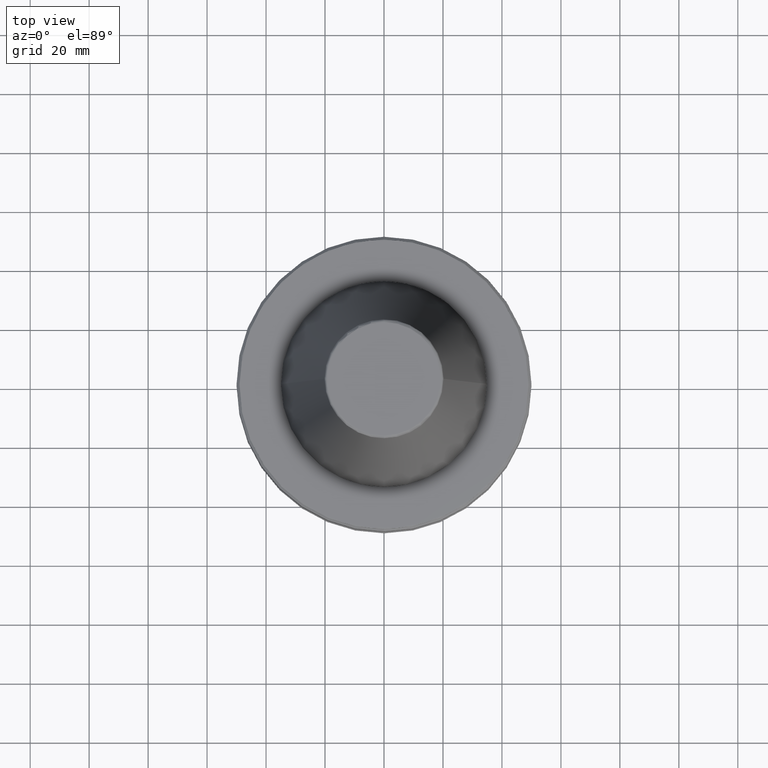
[diagram: clean part render]
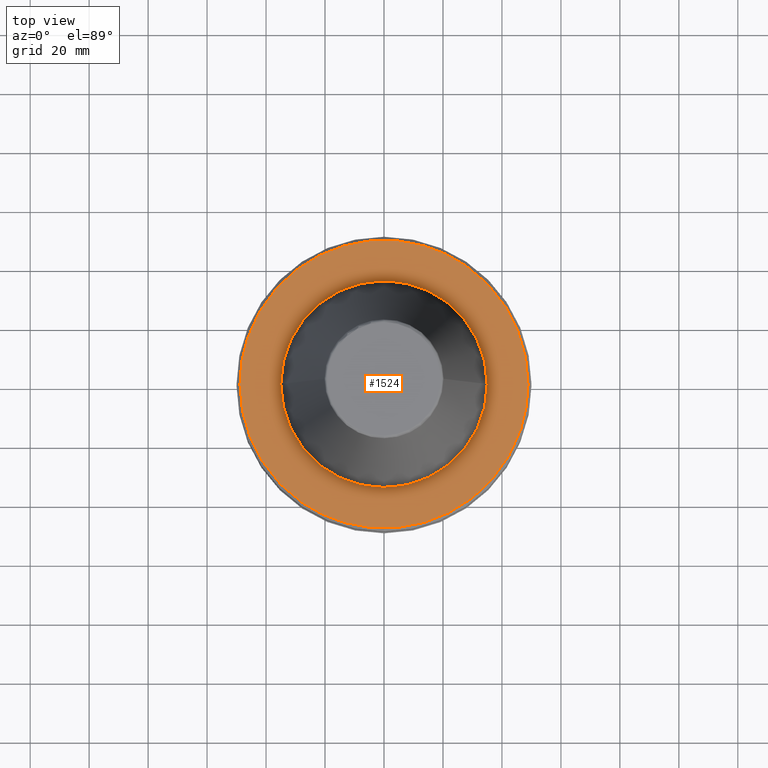
[diagram: same view with one face highlighted and labeled with its STEP entity id]
A machine part, top view. The second image highlights one B-rep face of the part: STEP entity #1524.
In plain terms, the highlighted planar face has unit normal (0, -0, 1).
Its self-contained STEP definition (entity closure, byte-faithful):
#37 = CARTESIAN_POINT ( 'NONE',  ( -27.23553220540944500, 40.53421423840848800, -3.000000000000004000 ) ) ;
#59 = CARTESIAN_POINT ( 'NONE',  ( 13.55000000000033500, 46.91681766717566400, -3.000000000000002700 ) ) ;
#62 = CARTESIAN_POINT ( 'NONE',  ( 15.96079540452978800, 46.22055821575450800, -3.000000000000004400 ) ) ;
#63 = CARTESIAN_POINT ( 'NONE',  ( 18.30369073963733200, 45.34383789579261000, -3.000000000000004000 ) ) ;
#68 = CARTESIAN_POINT ( 'NONE',  ( -26.89643901731271600, 40.76050785033930200, -3.000000000000003600 ) ) ;
#70 = CARTESIAN_POINT ( 'NONE',  ( 20.61423280634889500, 44.27013825121967700, -3.000000000000003600 ) ) ;
#72 = CARTESIAN_POINT ( 'NONE',  ( 20.65264015574149100, 44.25223456410775900, -3.000000000000003100 ) ) ;
#73 = CARTESIAN_POINT ( 'NONE',  ( 20.72651863346675700, 44.21767974870606800, -3.000000000000004000 ) ) ;
#75 = CARTESIAN_POINT ( 'NONE',  ( 20.83726067736095900, 44.16571485338405300, -3.000000000000004000 ) ) ;
#76 = CARTESIAN_POINT ( 'NONE',  ( 21.09512907092508300, 44.04353472542979400, -3.000000000000004000 ) ) ;
#78 = CARTESIAN_POINT ( 'NONE',  ( 21.60874702263039300, 43.79545964737665300, -3.000000000000004400 ) ) ;
#84 = CARTESIAN_POINT ( 'NONE',  ( 22.62750758434936300, 43.28445020269150900, -3.000000000000003600 ) ) ;
#85 = CARTESIAN_POINT ( 'NONE',  ( 24.63112734102079700, 42.20299415900606000, -3.000000000000003600 ) ) ;
#87 = CARTESIAN_POINT ( 'NONE',  ( 26.29039907513943000, 41.17413957130671800, -3.000000000000004000 ) ) ;
#90 = CARTESIAN_POINT ( 'NONE',  ( 27.40451160417230300, 40.42010142101575100, -3.000000000000004000 ) ) ;
#91 = CARTESIAN_POINT ( 'NONE',  ( 27.44013382654868100, 40.39592742588068600, -3.000000000000004000 ) ) ;
#93 = CARTESIAN_POINT ( 'NONE',  ( 27.50941560543479600, 40.34877846401325000, -3.000000000000004000 ) ) ;
#95 = CARTESIAN_POINT ( 'NONE',  ( 27.61323684454539100, 40.27792969539762400, -3.000000000000003100 ) ) ;
#98 = CARTESIAN_POINT ( 'NONE',  ( 27.85477639794029900, 40.11173862125994600, -3.000000000000004000 ) ) ;
#101 = CARTESIAN_POINT ( 'NONE',  ( 28.33501548661065800, 39.77584735017961000, -3.000000000000003600 ) ) ;
#104 = CARTESIAN_POINT ( 'NONE',  ( 29.28413359147368300, 39.09002831679926300, -3.000000000000004000 ) ) ;
#105 = CARTESIAN_POINT ( 'NONE',  ( -33.19187933990084400, 35.82093376859818100, -3.000000000000004400 ) ) ;
#108 = CARTESIAN_POINT ( 'NONE',  ( 31.13692951128890100, 37.66224428515946000, -3.000000000000004000 ) ) ;
#110 = CARTESIAN_POINT ( 'NONE',  ( 32.64714265985481500, 36.34217917538985200, -3.000000000000003100 ) ) ;
#111 = CARTESIAN_POINT ( 'NONE',  ( 33.68009197682785300, 35.36168156059145000, -3.000000000000003600 ) ) ;
#113 = CARTESIAN_POINT ( 'NONE',  ( 33.74244876260501500, 35.30218760878185000, -3.000000000000004000 ) ) ;
#118 = CARTESIAN_POINT ( 'NONE',  ( -48.25166318697979100, 7.521218934263147000, -3.000000000000004000 ) ) ;
#120 = CARTESIAN_POINT ( 'NONE',  ( 33.86507102913279300, 35.18457770622946200, -3.000000000000003600 ) ) ;
#123 = CARTESIAN_POINT ( 'NONE',  ( 34.04850818514732000, 35.00772323194038200, -3.000000000000004000 ) ) ;
#124 = CARTESIAN_POINT ( 'NONE',  ( 34.47305450940760400, 34.59198544870889700, -3.000000000000003600 ) ) ;
#127 = CARTESIAN_POINT ( 'NONE',  ( 35.30825233216713600, 33.74820050935147000, -3.000000000000004000 ) ) ;
#130 = CARTESIAN_POINT ( 'NONE',  ( 36.92306867464214500, 32.01139313905870400, -3.000000000000003100 ) ) ;
#131 = CARTESIAN_POINT ( 'NONE',  ( 38.21191816297380900, 30.43829397895997200, -3.000000000000004000 ) ) ;
#133 = CARTESIAN_POINT ( 'NONE',  ( 40.66257873267921500, 27.17955282087020300, -3.000000000000003100 ) ) ;
#134 = CARTESIAN_POINT ( 'NONE',  ( 42.10613973732795800, 24.88489482718798100, -3.000000000000004000 ) ) ;
#137 = CARTESIAN_POINT ( 'NONE',  ( 43.39600710890824300, 22.39606849091452600, -3.000000000000003600 ) ) ;
#142 = CARTESIAN_POINT ( 'NONE',  ( 43.43385987448086600, 22.32256529546423000, -3.000000000000003600 ) ) ;
#144 = CARTESIAN_POINT ( 'NONE',  ( 43.51020374681444700, 22.17339624215113100, -3.000000000000003600 ) ) ;
#147 = CARTESIAN_POINT ( 'NONE',  ( 43.62412377202790700, 21.94939578420574100, -3.000000000000002700 ) ) ;
#148 = CARTESIAN_POINT ( 'NONE',  ( 43.88576668118424400, 21.42499990316974800, -3.000000000000003600 ) ) ;
#151 = CARTESIAN_POINT ( 'NONE',  ( 44.39237056746301800, 20.36929555777729200, -3.000000000000003600 ) ) ;
#155 = CARTESIAN_POINT ( 'NONE',  ( 45.33885061188532700, 18.23023653371061000, -3.000000000000002700 ) ) ;
#159 = CARTESIAN_POINT ( 'NONE',  ( 46.03572883030116000, 16.34935679888469900, -3.000000000000003100 ) ) ;
#160 = CARTESIAN_POINT ( 'NONE',  ( 46.47533321699812300, 14.99468338358348200, -3.000000000000003600 ) ) ;
#169 = CARTESIAN_POINT ( 'NONE',  ( 46.49963493598600900, 14.91913835505413200, -3.000000000000002700 ) ) ;
#174 = CARTESIAN_POINT ( 'NONE',  ( 46.54920097119888600, 14.76376701351564700, -3.000000000000004000 ) ) ;
#178 = CARTESIAN_POINT ( 'NONE',  ( 46.62295525867276100, 14.53057035968709900, -3.000000000000002700 ) ) ;
#180 = CARTESIAN_POINT ( 'NONE',  ( 46.79088523869382500, 13.98546734344137700, -3.000000000000003600 ) ) ;
#181 = CARTESIAN_POINT ( 'NONE',  ( 47.11009176906399900, 12.89135134836683800, -3.000000000000004000 ) ) ;
#183 = CARTESIAN_POINT ( 'NONE',  ( 47.68189111111654200, 10.68747950788531600, -3.000000000000002700 ) ) ;
#198 = CARTESIAN_POINT ( 'NONE',  ( -33.55771801930628600, 35.47783643604631000, -3.000000000000003100 ) ) ;
#256 = B_SPLINE_CURVE_WITH_KNOTS ( 'NONE', 3,
 ( #1300, #2448, #1486, #1972, #2108, #1375, #1950, #1885, #1960, #2172, #1772, #1385, #1782, #2512, #1292, #2318, #1262, #2270, #1835, #1631, #1276, #2349, #2031, #1926, #2091, #2260, #2524, #1467, #1481, #2397, #1333, #2085, #1048, #1038, #1041, #1710, #1751, #2209, #2034, #1494, #2303, #1853, #1761, #2017, #1731, #2084, #2196, #2272, #2412, #2498, #2071, #2098, #1784, #1397, #1781, #2215, #2246 ),
 .UNSPECIFIED., .F., .F.,
 ( 4, 1, 1, 1, 1, 1, 2, 2, 1, 1, 1, 1, 2, 2, 1, 1, 1, 1, 2, 2, 2, 1, 1, 1, 1, 2, 2, 1, 1, 1, 1, 1, 2, 2, 1, 1, 1, 1, 1, 2, 2, 4 ),
 ( 0.5000000000000000000, 0.5312500000000008900, 0.5468750000000013300, 0.5546875000000015500, 0.5585937500000016700, 0.5605468750000017800, 0.5615234375000017800, 0.5625000000000017800, 0.5937500000000023300, 0.6093750000000025500, 0.6171875000000026600, 0.6210937500000026600, 0.6230468750000026600, 0.6250000000000026600, 0.6562500000000028900, 0.6718750000000028900, 0.6796875000000028900, 0.6835937500000028900, 0.6855468750000028900, 0.6875000000000028900, 0.7500000000000043300, 0.7812500000000051100, 0.7968750000000055500, 0.8046875000000057700, 0.8085937500000058800, 0.8105468750000060000, 0.8125000000000060000, 0.8437500000000079900, 0.8593750000000088800, 0.8671875000000093300, 0.8710937500000096600, 0.8730468750000098800, 0.8740234375000098800, 0.8750000000000099900, 0.9062500000000093300, 0.9218750000000088800, 0.9296875000000086600, 0.9335937500000086600, 0.9355468750000086600, 0.9365234375000085500, 0.9375000000000084400, 1.000000000000000000 ),
 .UNSPECIFIED. ) ;
#279 = CARTESIAN_POINT ( 'NONE',  ( -48.21322247611666300, 7.764469041444130900, -3.000000000000004000 ) ) ;
#282 = CIRCLE ( 'NONE', #2039, 48.83431457505076200 ) ;
#291 = B_SPLINE_CURVE_WITH_KNOTS ( 'NONE', 3,
 ( #976, #2249, #1226, #360, #1811, #1523, #401, #1461, #1521, #1034, #2510, #1730, #723, #715, #68, #2395, #37, #2316, #2461, #1159, #1872, #1257, #105, #1546, #2061, #198, #1507, #363, #2353, #2296, #1078, #1746, #541, #1733, #558, #1527, #2335, #2378, #709, #1928, #880, #1132, #2432, #597, #2346, #700, #2459, #349, #2474, #2332, #279, #659, #2033, #118, #2078, #851, #1704 ),
 .UNSPECIFIED., .F., .F.,
 ( 4, 1, 1, 1, 1, 1, 2, 2, 1, 1, 1, 1, 2, 2, 1, 1, 1, 1, 2, 2, 2, 1, 1, 1, 1, 2, 2, 1, 1, 1, 1, 1, 2, 2, 1, 1, 1, 1, 1, 2, 2, 4 ),
 ( 0.0000000000000000000, 0.03125000000000056900, 0.04687500000000092300, 0.05468750000000110300, 0.05859375000000122800, 0.06054687500000129100, 0.06152343750000131800, 0.06250000000000134600, 0.09375000000000137400, 0.1093750000000013700, 0.1171875000000013600, 0.1210937500000013500, 0.1230468750000013000, 0.1250000000000012800, 0.1562500000000011700, 0.1718750000000011700, 0.1796875000000012200, 0.1835937500000012800, 0.1855468750000013900, 0.1875000000000014700, 0.2500000000000013300, 0.2812500000000012800, 0.2968750000000012200, 0.3046875000000011700, 0.3085937500000011100, 0.3105468750000011100, 0.3125000000000010500, 0.3437500000000003900, 0.3593750000000000000, 0.3671874999999998300, 0.3710937499999998300, 0.3730468749999997800, 0.3740234374999998300, 0.3749999999999998300, 0.4062499999999998900, 0.4218749999999999400, 0.4296875000000000000, 0.4335937500000000000, 0.4355468750000000600, 0.4365234375000000600, 0.4375000000000000600, 0.5000000000000000000 ),
 .UNSPECIFIED. ) ;
#313 = VERTEX_POINT ( 'NONE', #1229 ) ;
#320 = CARTESIAN_POINT ( 'NONE',  ( 48.33913528503863000, 6.939862045039517600, -3.000000000000003600 ) ) ;
#326 = CARTESIAN_POINT ( 'NONE',  ( 48.29905917494857400, 7.211225430777359300, -3.000000000000004400 ) ) ;
#328 = CARTESIAN_POINT ( 'NONE',  ( 48.26391469426968700, 7.442204003466045500, -3.000000000000003600 ) ) ;
#330 = CARTESIAN_POINT ( 'NONE',  ( 48.05780988655400400, 8.771635329759890400, -3.000000000000003600 ) ) ;
#349 = CARTESIAN_POINT ( 'NONE',  ( -47.86329870647789200, 9.728944735816007500, -3.000000000000003600 ) ) ;
#353 = EDGE_CURVE ( 'NONE', #505, #1688, #282, .T. ) ;
#360 = CARTESIAN_POINT ( 'NONE',  ( -18.57278506928501100, 45.17233773588960600, -3.000000000000004000 ) ) ;
#363 = CARTESIAN_POINT ( 'NONE',  ( -37.39493595253374300, 31.52446931882317600, -3.000000000000004900 ) ) ;
#387 = VERTEX_POINT ( 'NONE', #1343 ) ;
#401 = CARTESIAN_POINT ( 'NONE',  ( -20.32955738506327100, 44.40168899857594900, -3.000000000000004000 ) ) ;
#429 = CARTESIAN_POINT ( 'NONE',  ( 48.26963561402765600, 7.404996304168480300, -3.000000000000004400 ) ) ;
#434 = CARTESIAN_POINT ( 'NONE',  ( 48.28146135143128200, 7.327492198324145000, -3.000000000000004400 ) ) ;
#444 = ORIENTED_EDGE ( 'NONE', *, *, #2503, .F. ) ;
#462 = DIRECTION ( 'NONE',  ( -1.000000000000000000, 0.0000000000000000000, 0.0000000000000000000 ) ) ;
#463 = DIRECTION ( 'NONE',  ( -0.0000000000000000000, -0.0000000000000000000, -1.000000000000000000 ) ) ;
#475 = CARTESIAN_POINT ( 'NONE',  ( 0.0000000000000000000, 0.0000000000000000000, -3.000000000000002700 ) ) ;
#505 = VERTEX_POINT ( 'NONE', #2372 ) ;
#529 = DIRECTION ( 'NONE',  ( -0.0000000000000000000, -0.0000000000000000000, -1.000000000000000000 ) ) ;
#535 = EDGE_LOOP ( 'NONE', ( #1377, #2224, #444, #2478, #1028, #1323 ) ) ;
#538 = EDGE_CURVE ( 'NONE', #2011, #1150, #1978, .T. ) ;
#541 = CARTESIAN_POINT ( 'NONE',  ( -43.08053204038057500, 22.99802936414789300, -3.000000000000003600 ) ) ;
#550 = B_SPLINE_CURVE_WITH_KNOTS ( 'NONE', 3,
 ( #2455, #1274, #2066, #879, #1137, #878, #1427, #1991, #1298, #2229, #2040, #1304, #2505, #1254, #1857, #1176, #1668, #1690, #1278, #1954, #2074, #1501, #1313, #1256, #1115, #671, #564, #641, #1119, #1112, #1125, #1093, #819, #810, #1742, #1269, #1597, #1993, #1714, #766, #1979, #999, #1657, #2133, #1011, #1020, #1024, #1675, #1017, #943, #1103, #1605, #1825, #2259, #1431, #1260, #1185 ),
 .UNSPECIFIED., .F., .F.,
 ( 4, 1, 1, 1, 1, 1, 2, 2, 1, 1, 1, 1, 2, 2, 1, 1, 1, 1, 2, 2, 2, 1, 1, 1, 1, 2, 2, 1, 1, 1, 1, 1, 2, 2, 1, 1, 1, 1, 1, 2, 2, 4 ),
 ( 0.0000000000000000000, 0.06250000000000613400, 0.09375000000000925600, 0.1093750000000107400, 0.1171875000000114100, 0.1210937500000116600, 0.1230468750000117800, 0.1250000000000119100, 0.1875000000000151500, 0.2187500000000166300, 0.2343750000000175400, 0.2421875000000179900, 0.2460937500000180400, 0.2500000000000181000, 0.3125000000000168200, 0.3437500000000161500, 0.3593750000000157700, 0.3671875000000156000, 0.3710937500000155400, 0.3750000000000154900, 0.5000000000000138800, 0.5625000000000129900, 0.5937500000000125500, 0.6093750000000124300, 0.6171875000000123200, 0.6210937500000121000, 0.6250000000000118800, 0.6875000000000104400, 0.7187500000000096600, 0.7343750000000093300, 0.7421875000000091000, 0.7460937500000091000, 0.7480468750000088800, 0.7500000000000087700, 0.8125000000000066600, 0.8437500000000056600, 0.8593750000000051100, 0.8671875000000048800, 0.8710937500000046600, 0.8730468750000046600, 0.8750000000000045500, 1.000000000000000000 ),
 .UNSPECIFIED. ) ;
#558 = CARTESIAN_POINT ( 'NONE',  ( -43.27851221864883500, 22.62228278937309900, -3.000000000000004000 ) ) ;
#564 = CARTESIAN_POINT ( 'NONE',  ( 35.59092170814943000, -33.54804444530891800, -3.000000000000003600 ) ) ;
#580 = EDGE_CURVE ( 'NONE', #1554, #313, #256, .T. ) ;
#597 = CARTESIAN_POINT ( 'NONE',  ( -46.42354857673245800, 15.15407649973855300, -3.000000000000004000 ) ) ;
#616 = CIRCLE ( 'NONE', #644, 35.00000000000000000 ) ;
#641 = CARTESIAN_POINT ( 'NONE',  ( 37.39493595240568900, -31.52446931902470300, -3.000000000000004000 ) ) ;
#644 = AXIS2_PLACEMENT_3D ( 'NONE', #2002, #529, #1513 ) ;
#659 = CARTESIAN_POINT ( 'NONE',  ( -48.23241948626135000, 7.643656684620761900, -3.000000000000003600 ) ) ;
#671 = CARTESIAN_POINT ( 'NONE',  ( 33.55771801930338000, -35.47783643604895300, -3.000000000000004000 ) ) ;
#685 = DIRECTION ( 'NONE',  ( 1.000000000000000000, 0.0000000000000000000, -0.0000000000000000000 ) ) ;
#692 = CARTESIAN_POINT ( 'NONE',  ( 48.76223388992388400, 3.130378040029057300, -3.000000000000002700 ) ) ;
#700 = CARTESIAN_POINT ( 'NONE',  ( -46.85218838754063600, 13.83355689064239500, -3.000000000000004400 ) ) ;
#709 = CARTESIAN_POINT ( 'NONE',  ( -45.68057851783069600, 17.28801724585975900, -3.000000000000003600 ) ) ;
#715 = CARTESIAN_POINT ( 'NONE',  ( -26.41933500148311300, 41.07309309406470300, -3.000000000000004000 ) ) ;
#723 = CARTESIAN_POINT ( 'NONE',  ( -25.45674972572673100, 41.68334894747632500, -3.000000000000003600 ) ) ;
#733 = EDGE_CURVE ( 'NONE', #387, #1097, #550, .T. ) ;
#760 = ORIENTED_EDGE ( 'NONE', *, *, #538, .T. ) ;
#766 = CARTESIAN_POINT ( 'NONE',  ( 46.07611793284339500, -16.18587320140845500, -3.000000000000004000 ) ) ;
#810 = CARTESIAN_POINT ( 'NONE',  ( 43.19954416767025400, -22.77272333030448000, -3.000000000000004000 ) ) ;
#819 = CARTESIAN_POINT ( 'NONE',  ( 43.08053204040695800, -22.99802936410629100, -3.000000000000003600 ) ) ;
#851 = CARTESIAN_POINT ( 'NONE',  ( -48.83426233409910800, 2.508310820191460300, -3.000000000000004000 ) ) ;
#878 = CARTESIAN_POINT ( 'NONE',  ( 20.07996905139597700, -44.51548638624510100, -3.000000000000003600 ) ) ;
#879 = CARTESIAN_POINT ( 'NONE',  ( 18.57278506911646300, -45.17233773593829200, -3.000000000000003600 ) ) ;
#880 = CARTESIAN_POINT ( 'NONE',  ( -46.26556893569932100, 15.63129151596917600, -3.000000000000004000 ) ) ;
#940 = CARTESIAN_POINT ( 'NONE',  ( 48.83431457505076900, 1.254323894214281600, -3.000000000000004000 ) ) ;
#943 = CARTESIAN_POINT ( 'NONE',  ( 48.16739023597520500, -8.046113315427994900, -3.000000000000004000 ) ) ;
#960 = ORIENTED_EDGE ( 'NONE', *, *, #1652, .T. ) ;
#976 = CARTESIAN_POINT ( 'NONE',  ( -13.55000000000003400, 46.91681766717574900, -3.000000000000002700 ) ) ;
#994 = CARTESIAN_POINT ( 'NONE',  ( 48.41534559275088200, 6.396838227715814000, -3.000000000000003100 ) ) ;
#999 = CARTESIAN_POINT ( 'NONE',  ( 46.35821476094903900, -15.35312325745613500, -3.000000000000003600 ) ) ;
#1004 = EDGE_CURVE ( 'NONE', #1097, #1688, #1645, .T. ) ;
#1009 = FACE_BOUND ( 'NONE', #2468, .T. ) ;
#1011 = CARTESIAN_POINT ( 'NONE',  ( 46.43688931498943600, -15.11314546664304500, -3.000000000000003100 ) ) ;
#1017 = CARTESIAN_POINT ( 'NONE',  ( 48.07156888578058600, -8.608396974643161700, -3.000000000000004000 ) ) ;
#1020 = CARTESIAN_POINT ( 'NONE',  ( 46.85218838945433400, -13.83355688478801300, -3.000000000000003100 ) ) ;
#1024 = CARTESIAN_POINT ( 'NONE',  ( 47.38024844980027700, -11.95396197534537200, -3.000000000000004400 ) ) ;
#1028 = ORIENTED_EDGE ( 'NONE', *, *, #1004, .T. ) ;
#1034 = CARTESIAN_POINT ( 'NONE',  ( -20.54171500325262300, 44.30383512485258300, -3.000000000000004000 ) ) ;
#1038 = CARTESIAN_POINT ( 'NONE',  ( -33.86507102918198300, -35.18457770616905800, -3.000000000000003600 ) ) ;
#1041 = CARTESIAN_POINT ( 'NONE',  ( -33.74244876263042400, -35.30218760875071400, -3.000000000000004000 ) ) ;
#1048 = CARTESIAN_POINT ( 'NONE',  ( -34.04850818523095800, -35.00772323183752400, -3.000000000000003100 ) ) ;
#1068 = CARTESIAN_POINT ( 'NONE',  ( 48.83431457505076200, -5.872557691932300300E-015, -3.000000000000003600 ) ) ;
#1078 = CARTESIAN_POINT ( 'NONE',  ( -42.22000466109877700, 24.55778749774379600, -3.000000000000003600 ) ) ;
#1085 = DIRECTION ( 'NONE',  ( 0.0000000000000000000, -0.0000000000000000000, 1.000000000000000000 ) ) ;
#1093 = CARTESIAN_POINT ( 'NONE',  ( 42.79891672130962400, -23.52125999967609700, -3.000000000000004400 ) ) ;
#1097 = VERTEX_POINT ( 'NONE', #1861 ) ;
#1103 = CARTESIAN_POINT ( 'NONE',  ( 48.21322247652229700, -7.764469040202752300, -3.000000000000004000 ) ) ;
#1112 = CARTESIAN_POINT ( 'NONE',  ( 40.99945485320051800, -26.59110740066587300, -3.000000000000004000 ) ) ;
#1115 = CARTESIAN_POINT ( 'NONE',  ( 33.49760391570076500, -35.53459774463583900, -3.000000000000003100 ) ) ;
#1119 = CARTESIAN_POINT ( 'NONE',  ( 39.84573955310968100, -28.26583572988388600, -3.000000000000003600 ) ) ;
#1125 = CARTESIAN_POINT ( 'NONE',  ( 42.22000466118275600, -24.55778749761157100, -3.000000000000003600 ) ) ;
#1132 = CARTESIAN_POINT ( 'NONE',  ( -46.35821476095267700, 15.35312325745407900, -3.000000000000003600 ) ) ;
#1137 = CARTESIAN_POINT ( 'NONE',  ( 19.57941324405338800, -44.73937645067123700, -3.000000000000004400 ) ) ;
#1150 = VERTEX_POINT ( 'NONE', #1436 ) ;
#1159 = CARTESIAN_POINT ( 'NONE',  ( -30.09453745907142900, 38.50028199906233800, -3.000000000000003600 ) ) ;
#1172 = CARTESIAN_POINT ( 'NONE',  ( 0.0000000000000000000, 3.761784076614683100E-016, -3.000000000000003600 ) ) ;
#1176 = CARTESIAN_POINT ( 'NONE',  ( 27.10001460506892100, -40.62494474939526200, -3.000000000000004000 ) ) ;
#1185 = CARTESIAN_POINT ( 'NONE',  ( 48.83431457505076200, -5.872557691932300300E-015, -3.000000000000003600 ) ) ;
#1226 = CARTESIAN_POINT ( 'NONE',  ( -16.53746247846028400, 45.97898493206698600, -3.000000000000004000 ) ) ;
#1229 = CARTESIAN_POINT ( 'NONE',  ( -13.55000000000033300, -46.91681766717566400, -3.000000000000002700 ) ) ;
#1254 = CARTESIAN_POINT ( 'NONE',  ( 26.41933500142889800, -41.07309309410793900, -3.000000000000004000 ) ) ;
#1256 = CARTESIAN_POINT ( 'NONE',  ( 33.37547508358979800, -35.64933370969678400, -3.000000000000004000 ) ) ;
#1257 = CARTESIAN_POINT ( 'NONE',  ( -32.76067180271516600, 36.21780668512191400, -3.000000000000003600 ) ) ;
#1260 = CARTESIAN_POINT ( 'NONE',  ( 48.83431457505076200, -2.509324950172765700, -3.000000000000002700 ) ) ;
#1261 = CARTESIAN_POINT ( 'NONE',  ( 48.55199855830390000, 5.309602409676333700, -3.000000000000003600 ) ) ;
#1262 = CARTESIAN_POINT ( 'NONE',  ( -46.49963493599049300, -14.91913835503140700, -3.000000000000004000 ) ) ;
#1269 = CARTESIAN_POINT ( 'NONE',  ( 43.31836805486218400, -22.54586674811006100, -3.000000000000004000 ) ) ;
#1274 = CARTESIAN_POINT ( 'NONE',  ( 14.75507241575457200, -46.56878188714247100, -3.000000000000004000 ) ) ;
#1276 = CARTESIAN_POINT ( 'NONE',  ( -44.39237056751483100, -20.36929555771631000, -3.000000000000003600 ) ) ;
#1278 = CARTESIAN_POINT ( 'NONE',  ( 28.48087312497931100, -39.69168253820092200, -3.000000000000003100 ) ) ;
#1292 = CARTESIAN_POINT ( 'NONE',  ( -46.62295525868694300, -14.53057035961355800, -3.000000000000003100 ) ) ;
#1298 = CARTESIAN_POINT ( 'NONE',  ( 20.50755565452770300, -44.31965538733499000, -3.000000000000003600 ) ) ;
#1300 = CARTESIAN_POINT ( 'NONE',  ( -48.83431457505076200, 8.049116928532384900E-013, -3.000000000000003600 ) ) ;
#1304 = CARTESIAN_POINT ( 'NONE',  ( 23.49807019770247500, -42.84420211824117800, -3.000000000000003600 ) ) ;
#1313 = CARTESIAN_POINT ( 'NONE',  ( 33.19187933991025800, -35.82093376858835400, -3.000000000000003600 ) ) ;
#1323 = ORIENTED_EDGE ( 'NONE', *, *, #353, .F. ) ;
#1333 = CARTESIAN_POINT ( 'NONE',  ( -35.30825233243377400, -33.74820050902319900, -3.000000000000003600 ) ) ;
#1343 = CARTESIAN_POINT ( 'NONE',  ( 13.54999999999996900, -46.91681766717575600, -3.000000000000002700 ) ) ;
#1375 = CARTESIAN_POINT ( 'NONE',  ( -48.33914599851516400, -6.939792940224271500, -3.000000000000003600 ) ) ;
#1377 = ORIENTED_EDGE ( 'NONE', *, *, #1551, .T. ) ;
#1385 = CARTESIAN_POINT ( 'NONE',  ( -47.68189111117587900, -10.68747950757466100, -3.000000000000002700 ) ) ;
#1397 = CARTESIAN_POINT ( 'NONE',  ( -20.61423280634948400, -44.27013825121951400, -3.000000000000004400 ) ) ;
#1416 = DIRECTION ( 'NONE',  ( -0.0000000000000000000, -0.0000000000000000000, -1.000000000000000000 ) ) ;
#1427 = CARTESIAN_POINT ( 'NONE',  ( 20.32955738503580500, -44.40168899858391400, -3.000000000000003600 ) ) ;
#1431 = CARTESIAN_POINT ( 'NONE',  ( 48.64209941471247600, -5.003488217250251500, -3.000000000000003100 ) ) ;
#1436 = CARTESIAN_POINT ( 'NONE',  ( -35.00000000000000000, 2.143131898507869000E-015, -3.000000000000003100 ) ) ;
#1461 = CARTESIAN_POINT ( 'NONE',  ( -20.43637604874784900, 44.35252175627126500, -3.000000000000004000 ) ) ;
#1467 = CARTESIAN_POINT ( 'NONE',  ( -40.66257873227418400, -27.17955282136886600, -3.000000000000004400 ) ) ;
#1475 = CARTESIAN_POINT ( 'NONE',  ( 0.0000000000000000000, -2.143131898507867900E-015, -3.000000000000003100 ) ) ;
#1481 = CARTESIAN_POINT ( 'NONE',  ( -38.21191816317709600, -30.43829397870957000, -3.000000000000003100 ) ) ;
#1486 = CARTESIAN_POINT ( 'NONE',  ( -48.76227960075661400, -3.130083192820077200, -3.000000000000003600 ) ) ;
#1494 = CARTESIAN_POINT ( 'NONE',  ( -28.33501548676044000, -39.77584735008070300, -3.000000000000002700 ) ) ;
#1501 = CARTESIAN_POINT ( 'NONE',  ( 32.76067180273337700, -36.21780668510300000, -3.000000000000003600 ) ) ;
#1507 = CARTESIAN_POINT ( 'NONE',  ( -35.59092170807915800, 33.54804444537116100, -3.000000000000003100 ) ) ;
#1513 = DIRECTION ( 'NONE',  ( 1.000000000000000000, 0.0000000000000000000, 0.0000000000000000000 ) ) ;
#1521 = CARTESIAN_POINT ( 'NONE',  ( -20.50755565453594900, 44.31965538733256700, -3.000000000000004900 ) ) ;
#1523 = CARTESIAN_POINT ( 'NONE',  ( -20.07996905144884900, 44.51548638622978900, -3.000000000000003600 ) ) ;
#1524 = ADVANCED_FACE ( 'NONE', ( #2560, #1009 ), #1715, .T. ) ;
#1527 = CARTESIAN_POINT ( 'NONE',  ( -43.31836805486079100, 22.54586674811126900, -3.000000000000002700 ) ) ;
#1546 = CARTESIAN_POINT ( 'NONE',  ( -33.37547508358455400, 35.64933370970226200, -3.000000000000002700 ) ) ;
#1551 = EDGE_CURVE ( 'NONE', #505, #1554, #291, .T. ) ;
#1554 = VERTEX_POINT ( 'NONE', #1659 ) ;
#1564 = CIRCLE ( 'NONE', #2392, 48.83431457505076200 ) ;
#1588 = DIRECTION ( 'NONE',  ( -1.000000000000000000, 0.0000000000000000000, 0.0000000000000000000 ) ) ;
#1597 = CARTESIAN_POINT ( 'NONE',  ( 43.97375484283028200, -21.28141903386862300, -3.000000000000003600 ) ) ;
#1598 = CARTESIAN_POINT ( 'NONE',  ( 35.00000000000000000, -2.143131898507867900E-015, -3.000000000000003100 ) ) ;
#1605 = CARTESIAN_POINT ( 'NONE',  ( 48.23241948649599900, -7.643656683902436900, -3.000000000000004000 ) ) ;
#1631 = CARTESIAN_POINT ( 'NONE',  ( -45.33885061195423600, -18.23023653362964300, -3.000000000000003600 ) ) ;
#1645 = B_SPLINE_CURVE_WITH_KNOTS ( 'NONE', 3,
 ( #1068, #940, #692, #1261, #994, #320, #326, #434, #429, #328, #330, #183, #181, #180, #178, #174, #169, #160, #159, #155, #151, #148, #147, #144, #142, #137, #134, #133, #131, #130, #127, #124, #123, #120, #113, #111, #110, #108, #104, #101, #98, #95, #93, #91, #90, #87, #85, #84, #78, #76, #75, #73, #72, #70, #63, #62, #59 ),
 .UNSPECIFIED., .F., .F.,
 ( 4, 1, 1, 1, 1, 1, 2, 2, 1, 1, 1, 1, 2, 2, 1, 1, 1, 1, 2, 2, 2, 1, 1, 1, 1, 2, 2, 1, 1, 1, 1, 1, 2, 2, 1, 1, 1, 1, 1, 2, 2, 4 ),
 ( 0.0000000000000000000, 0.06250000000000176200, 0.09375000000000267800, 0.1093750000000031200, 0.1171875000000033700, 0.1210937500000034700, 0.1230468750000035100, 0.1250000000000035500, 0.1875000000000058600, 0.2187500000000069400, 0.2343750000000074700, 0.2421875000000076900, 0.2460937500000078300, 0.2500000000000079900, 0.3125000000000115500, 0.3437500000000132700, 0.3593750000000141600, 0.3671875000000146000, 0.3710937500000147700, 0.3750000000000149300, 0.5000000000000167600, 0.5625000000000176500, 0.5937500000000181000, 0.6093750000000183200, 0.6171875000000184300, 0.6210937500000184300, 0.6250000000000184300, 0.6875000000000193200, 0.7187500000000197600, 0.7343750000000201000, 0.7421875000000202100, 0.7460937500000201000, 0.7480468750000201000, 0.7500000000000201000, 0.8125000000000132100, 0.8437500000000097700, 0.8593750000000081000, 0.8671875000000073300, 0.8710937500000067700, 0.8730468750000066600, 0.8750000000000064400, 1.000000000000000000 ),
 .UNSPECIFIED. ) ;
#1652 = EDGE_CURVE ( 'NONE', #1150, #2011, #616, .T. ) ;
#1657 = CARTESIAN_POINT ( 'NONE',  ( 46.39747446973758100, -15.23372027184852200, -3.000000000000003600 ) ) ;
#1659 = CARTESIAN_POINT ( 'NONE',  ( -48.83431457505076200, 8.049116928532384900E-013, -3.000000000000003600 ) ) ;
#1668 = CARTESIAN_POINT ( 'NONE',  ( 27.23553220540012600, -40.53421423841582100, -3.000000000000002700 ) ) ;
#1675 = CARTESIAN_POINT ( 'NONE',  ( 47.86329870898952500, -9.728944728132237400, -3.000000000000003600 ) ) ;
#1688 = VERTEX_POINT ( 'NONE', #2406 ) ;
#1690 = CARTESIAN_POINT ( 'NONE',  ( 27.30136796178399500, -40.48990534466803100, -3.000000000000004000 ) ) ;
#1704 = CARTESIAN_POINT ( 'NONE',  ( -48.83431457505076200, 8.049116928532384900E-013, -3.000000000000003600 ) ) ;
#1710 = CARTESIAN_POINT ( 'NONE',  ( -33.68009197681610800, -35.36168156059912300, -3.000000000000004000 ) ) ;
#1714 = CARTESIAN_POINT ( 'NONE',  ( 45.68057851780706400, -17.28801724587585300, -3.000000000000003600 ) ) ;
#1715 = PLANE ( 'NONE',  #2057 ) ;
#1717 = AXIS2_PLACEMENT_3D ( 'NONE', #1475, #2124, #1860 ) ;
#1730 = CARTESIAN_POINT ( 'NONE',  ( -23.49807019782533900, 42.84420211814300200, -3.000000000000003600 ) ) ;
#1731 = CARTESIAN_POINT ( 'NONE',  ( -27.40451160417343600, -40.42010142101506900, -3.000000000000003600 ) ) ;
#1733 = CARTESIAN_POINT ( 'NONE',  ( -43.19954416765470000, 22.77272333032902900, -3.000000000000003600 ) ) ;
#1742 = CARTESIAN_POINT ( 'NONE',  ( 43.27851221865692100, -22.62228278936032700, -3.000000000000003600 ) ) ;
#1746 = CARTESIAN_POINT ( 'NONE',  ( -42.79891672126051100, 23.52125999975341500, -3.000000000000003600 ) ) ;
#1751 = CARTESIAN_POINT ( 'NONE',  ( -32.64714266005061900, -36.34217917526048300, -3.000000000000003100 ) ) ;
#1761 = CARTESIAN_POINT ( 'NONE',  ( -27.50941560545886600, -40.34877846399733400, -3.000000000000003600 ) ) ;
#1772 = CARTESIAN_POINT ( 'NONE',  ( -48.05780988658794000, -8.771635329582025500, -3.000000000000003600 ) ) ;
#1781 = CARTESIAN_POINT ( 'NONE',  ( -18.30369073959559100, -45.34383789580465400, -3.000000000000004400 ) ) ;
#1782 = CARTESIAN_POINT ( 'NONE',  ( -47.11009176910860700, -12.89135134813358300, -3.000000000000004000 ) ) ;
#1784 = CARTESIAN_POINT ( 'NONE',  ( -20.65264015573939500, -44.25223456410896000, -3.000000000000004000 ) ) ;
#1811 = CARTESIAN_POINT ( 'NONE',  ( -19.57941324415183000, 44.73937645064275900, -3.000000000000004000 ) ) ;
#1825 = CARTESIAN_POINT ( 'NONE',  ( 48.24511852007130800, -7.563091187053768000, -3.000000000000003600 ) ) ;
#1835 = CARTESIAN_POINT ( 'NONE',  ( -46.03572883034065200, -16.34935679883803400, -3.000000000000003100 ) ) ;
#1853 = CARTESIAN_POINT ( 'NONE',  ( -27.61323684458695700, -40.27792969537018300, -3.000000000000004000 ) ) ;
#1857 = CARTESIAN_POINT ( 'NONE',  ( 26.89643901728333500, -40.76050785036270000, -3.000000000000004000 ) ) ;
#1860 = DIRECTION ( 'NONE',  ( 1.000000000000000000, 0.0000000000000000000, 0.0000000000000000000 ) ) ;
#1861 = CARTESIAN_POINT ( 'NONE',  ( 48.83431457505076200, -5.872557691932300300E-015, -3.000000000000003600 ) ) ;
#1869 = CARTESIAN_POINT ( 'NONE',  ( 0.0000000000000000000, 0.0000000000000000000, -3.000000000000002700 ) ) ;
#1872 = CARTESIAN_POINT ( 'NONE',  ( -31.88698685398246000, 36.99744363456910900, -3.000000000000004400 ) ) ;
#1885 = CARTESIAN_POINT ( 'NONE',  ( -48.28146455272013800, -7.327471549146623400, -3.000000000000004000 ) ) ;
#1926 = CARTESIAN_POINT ( 'NONE',  ( -43.51020374682437400, -22.17339624213915500, -3.000000000000003600 ) ) ;
#1928 = CARTESIAN_POINT ( 'NONE',  ( -46.07611793285708000, 16.18587320139933900, -3.000000000000003600 ) ) ;
#1950 = CARTESIAN_POINT ( 'NONE',  ( -48.29906471024481400, -7.211189726622409400, -3.000000000000003600 ) ) ;
#1954 = CARTESIAN_POINT ( 'NONE',  ( 30.09453745911390100, -38.50028199901819200, -3.000000000000004000 ) ) ;
#1960 = CARTESIAN_POINT ( 'NONE',  ( -48.26963723380334400, -7.404985856177847700, -3.000000000000003600 ) ) ;
#1972 = CARTESIAN_POINT ( 'NONE',  ( -48.55203284142848500, -5.309381274269387800, -3.000000000000003600 ) ) ;
#1978 = CIRCLE ( 'NONE', #1717, 35.00000000000000000 ) ;
#1979 = CARTESIAN_POINT ( 'NONE',  ( 46.26556893569205900, -15.63129151597373800, -3.000000000000004000 ) ) ;
#1991 = CARTESIAN_POINT ( 'NONE',  ( 20.43637604873184400, -44.35252175627593400, -3.000000000000004000 ) ) ;
#1993 = CARTESIAN_POINT ( 'NONE',  ( 44.82295005037870800, -19.46422802920254500, -3.000000000000003100 ) ) ;
#2002 = CARTESIAN_POINT ( 'NONE',  ( 0.0000000000000000000, -2.143131898507867900E-015, -3.000000000000003100 ) ) ;
#2011 = VERTEX_POINT ( 'NONE', #1598 ) ;
#2017 = CARTESIAN_POINT ( 'NONE',  ( -27.44013382656092800, -40.39592742587260700, -3.000000000000003600 ) ) ;
#2031 = CARTESIAN_POINT ( 'NONE',  ( -43.62412377204448400, -21.94939578418600600, -3.000000000000004900 ) ) ;
#2033 = CARTESIAN_POINT ( 'NONE',  ( -48.24511851995252700, 7.563091187417672500, -3.000000000000003100 ) ) ;
#2034 = CARTESIAN_POINT ( 'NONE',  ( -29.28413359173038800, -39.09002831662972700, -3.000000000000003600 ) ) ;
#2039 = AXIS2_PLACEMENT_3D ( 'NONE', #1869, #1416, #1588 ) ;
#2040 = CARTESIAN_POINT ( 'NONE',  ( 21.76175807145903800, -43.73694734535920500, -3.000000000000004000 ) ) ;
#2057 = AXIS2_PLACEMENT_3D ( 'NONE', #1172, #1085, #685 ) ;
#2061 = CARTESIAN_POINT ( 'NONE',  ( -33.49760391569843400, 35.53459774463830500, -3.000000000000004000 ) ) ;
#2066 = CARTESIAN_POINT ( 'NONE',  ( 16.53746247823569200, -45.97898493213186600, -3.000000000000004400 ) ) ;
#2071 = CARTESIAN_POINT ( 'NONE',  ( -20.83726067735397100, -44.16571485338806000, -3.000000000000003100 ) ) ;
#2074 = CARTESIAN_POINT ( 'NONE',  ( 31.88698685401412200, -36.99744363453618900, -3.000000000000003100 ) ) ;
#2078 = CARTESIAN_POINT ( 'NONE',  ( -48.64204714561913800, 5.003825287324449500, -3.000000000000004000 ) ) ;
#2084 = CARTESIAN_POINT ( 'NONE',  ( -26.29039907510678700, -41.17413957132566100, -3.000000000000003600 ) ) ;
#2085 = CARTESIAN_POINT ( 'NONE',  ( -34.47305450956331900, -34.59198544851725600, -3.000000000000003600 ) ) ;
#2091 = CARTESIAN_POINT ( 'NONE',  ( -43.43385987448619500, -22.32256529545761100, -3.000000000000003600 ) ) ;
#2098 = CARTESIAN_POINT ( 'NONE',  ( -20.72651863346267500, -44.21767974870839900, -3.000000000000003100 ) ) ;
#2108 = CARTESIAN_POINT ( 'NONE',  ( -48.41536559124028100, -6.396709232061414100, -3.000000000000003600 ) ) ;
#2124 = DIRECTION ( 'NONE',  ( -0.0000000000000000000, -0.0000000000000000000, -1.000000000000000000 ) ) ;
#2133 = CARTESIAN_POINT ( 'NONE',  ( 46.42354857673152000, -15.15407649973868400, -3.000000000000003100 ) ) ;
#2172 = CARTESIAN_POINT ( 'NONE',  ( -48.26391469426876300, -7.442204003470745700, -3.000000000000004400 ) ) ;
#2196 = CARTESIAN_POINT ( 'NONE',  ( -24.63112734096356600, -42.20299415903929200, -3.000000000000003600 ) ) ;
#2209 = CARTESIAN_POINT ( 'NONE',  ( -31.13692951163120200, -37.66224428493340800, -3.000000000000003600 ) ) ;
#2215 = CARTESIAN_POINT ( 'NONE',  ( -15.96079540448807800, -46.22055821576657300, -3.000000000000004000 ) ) ;
#2224 = ORIENTED_EDGE ( 'NONE', *, *, #580, .T. ) ;
#2229 = CARTESIAN_POINT ( 'NONE',  ( 20.54171500325452000, -44.30383512485096300, -3.000000000000003100 ) ) ;
#2246 = CARTESIAN_POINT ( 'NONE',  ( -13.55000000000033300, -46.91681766717566400, -3.000000000000002700 ) ) ;
#2249 = CARTESIAN_POINT ( 'NONE',  ( -14.75507241588291800, 46.56878188710541600, -3.000000000000004400 ) ) ;
#2259 = CARTESIAN_POINT ( 'NONE',  ( 48.25166237027531900, -7.521224200982128800, -3.000000000000003100 ) ) ;
#2260 = CARTESIAN_POINT ( 'NONE',  ( -43.39600710890982100, -22.39606849091335100, -3.000000000000003600 ) ) ;
#2270 = CARTESIAN_POINT ( 'NONE',  ( -46.47533321699599900, -14.99468338358538600, -3.000000000000003600 ) ) ;
#2272 = CARTESIAN_POINT ( 'NONE',  ( -22.62750758430637200, -43.28445020271646400, -3.000000000000003600 ) ) ;
#2296 = CARTESIAN_POINT ( 'NONE',  ( -40.99945485308867200, 26.59110740084192100, -3.000000000000004400 ) ) ;
#2303 = CARTESIAN_POINT ( 'NONE',  ( -27.85477639802058300, -40.11173862120693200, -3.000000000000003600 ) ) ;
#2316 = CARTESIAN_POINT ( 'NONE',  ( -27.30136796178627600, 40.48990534466595600, -3.000000000000004000 ) ) ;
#2318 = CARTESIAN_POINT ( 'NONE',  ( -46.54920097120730600, -14.76376701347217900, -3.000000000000003600 ) ) ;
#2332 = CARTESIAN_POINT ( 'NONE',  ( -48.16739023519022600, 8.046113317829796300, -3.000000000000003600 ) ) ;
#2335 = CARTESIAN_POINT ( 'NONE',  ( -43.97375484284825100, 21.28141903385637000, -3.000000000000003100 ) ) ;
#2346 = CARTESIAN_POINT ( 'NONE',  ( -46.43688931504904400, 15.11314546646077900, -3.000000000000004400 ) ) ;
#2349 = CARTESIAN_POINT ( 'NONE',  ( -43.88576668121468300, -21.42499990313375600, -3.000000000000003600 ) ) ;
#2353 = CARTESIAN_POINT ( 'NONE',  ( -39.84573955304584600, 28.26583572998434600, -3.000000000000002700 ) ) ;
#2372 = CARTESIAN_POINT ( 'NONE',  ( -13.55000000000003400, 46.91681766717574900, -3.000000000000002700 ) ) ;
#2378 = CARTESIAN_POINT ( 'NONE',  ( -44.82295005041030600, 19.46422802918081300, -3.000000000000003600 ) ) ;
#2392 = AXIS2_PLACEMENT_3D ( 'NONE', #475, #463, #462 ) ;
#2395 = CARTESIAN_POINT ( 'NONE',  ( -27.10001460508642200, 40.62494474938135600, -3.000000000000004000 ) ) ;
#2397 = CARTESIAN_POINT ( 'NONE',  ( -36.92306867499754500, -32.01139313862110900, -3.000000000000004000 ) ) ;
#2406 = CARTESIAN_POINT ( 'NONE',  ( 13.55000000000033500, 46.91681766717566400, -3.000000000000002700 ) ) ;
#2412 = CARTESIAN_POINT ( 'NONE',  ( -21.60874702260526800, -43.79545964739120500, -3.000000000000003600 ) ) ;
#2432 = CARTESIAN_POINT ( 'NONE',  ( -46.39747446973961300, 15.23372027184762000, -3.000000000000004000 ) ) ;
#2448 = CARTESIAN_POINT ( 'NONE',  ( -48.83434069552662000, -1.254155410094520500, -3.000000000000004400 ) ) ;
#2455 = CARTESIAN_POINT ( 'NONE',  ( 13.54999999999996900, -46.91681766717575600, -3.000000000000002700 ) ) ;
#2459 = CARTESIAN_POINT ( 'NONE',  ( -47.38024844645144600, 11.95396198559005700, -3.000000000000003600 ) ) ;
#2461 = CARTESIAN_POINT ( 'NONE',  ( -28.48087312495535500, 39.69168253822598300, -3.000000000000003600 ) ) ;
#2468 = EDGE_LOOP ( 'NONE', ( #760, #960 ) ) ;
#2474 = CARTESIAN_POINT ( 'NONE',  ( -48.07156888431538300, 8.608396979125744900, -3.000000000000002700 ) ) ;
#2478 = ORIENTED_EDGE ( 'NONE', *, *, #733, .T. ) ;
#2498 = CARTESIAN_POINT ( 'NONE',  ( -21.09512907091159000, -44.04353472543762400, -3.000000000000003600 ) ) ;
#2503 = EDGE_CURVE ( 'NONE', #387, #313, #1564, .T. ) ;
#2505 = CARTESIAN_POINT ( 'NONE',  ( 25.45674972563434600, -41.68334894755014400, -3.000000000000003600 ) ) ;
#2510 = CARTESIAN_POINT ( 'NONE',  ( -21.76175807152932900, 43.73694734530309300, -3.000000000000003600 ) ) ;
#2512 = CARTESIAN_POINT ( 'NONE',  ( -46.79088523871998000, -13.98546734330492000, -3.000000000000003600 ) ) ;
#2524 = CARTESIAN_POINT ( 'NONE',  ( -42.10613973729419300, -24.88489482719284100, -3.000000000000003600 ) ) ;
#2560 = FACE_OUTER_BOUND ( 'NONE', #535, .T. ) ;